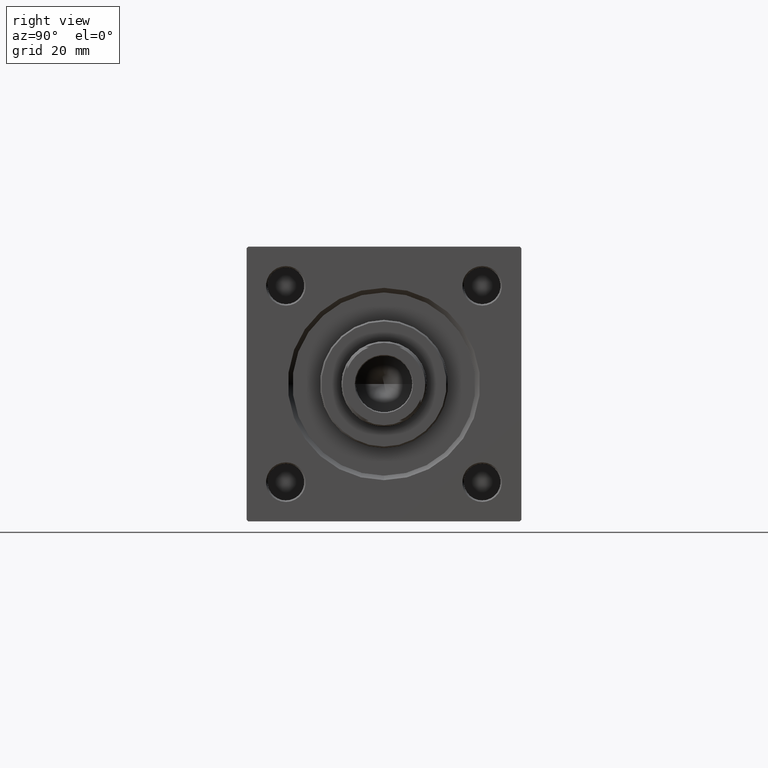
[diagram: clean part render]
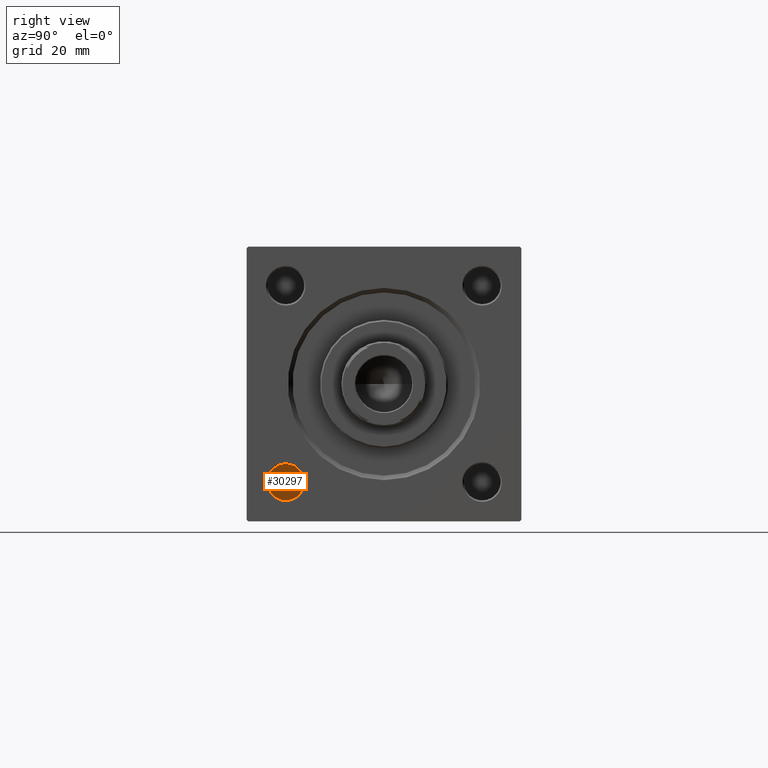
[diagram: same view with one face highlighted and labeled with its STEP entity id]
A machine part, right view. The second image highlights one B-rep face of the part: STEP entity #30297.
In plain terms, the highlighted planar face has unit normal (1, 0, 0).
Its self-contained STEP definition (entity closure, byte-faithful):
#4669 = AXIS2_PLACEMENT_3D ( 'NONE', #42808, #16145, #8022 ) ;
#5245 = AXIS2_PLACEMENT_3D ( 'NONE', #24859, #40562, #32959 ) ;
#6519 = DIRECTION ( 'NONE',  ( 0.000000000000000000, 0.000000000000000000, -1.000000000000000000 ) ) ;
#8022 = DIRECTION ( 'NONE',  ( 0.000000000000000000, 0.000000000000000000, -1.000000000000000000 ) ) ;
#8236 = EDGE_LOOP ( 'NONE', ( #14930, #29935 ) ) ;
#10501 = AXIS2_PLACEMENT_3D ( 'NONE', #42067, #22772, #6519 ) ;
#12092 = FACE_OUTER_BOUND ( 'NONE', #8236, .T. ) ;
#14930 = ORIENTED_EDGE ( 'NONE', *, *, #36461, .T. ) ;
#16145 = DIRECTION ( 'NONE',  ( 1.000000000000000000, 0.000000000000000000, 0.000000000000000000 ) ) ;
#21794 = VERTEX_POINT ( 'NONE', #24820 ) ;
#21951 = CIRCLE ( 'NONE', #10501, 5.999999999999998224 ) ;
#22772 = DIRECTION ( 'NONE',  ( 1.000000000000000000, 0.000000000000000000, 0.000000000000000000 ) ) ;
#23667 = EDGE_CURVE ( 'NONE', #21794, #49617, #46614, .T. ) ;
#24820 = CARTESIAN_POINT ( 'NONE',  ( 130.0000000000000000, -32.15000000000001279, -26.15000000000000924 ) ) ;
#24859 = CARTESIAN_POINT ( 'NONE',  ( 130.0000000000000000, -32.15000000000001279, -32.15000000000000568 ) ) ;
#29935 = ORIENTED_EDGE ( 'NONE', *, *, #23667, .T. ) ;
#30297 = ADVANCED_FACE ( 'NONE', ( #12092 ), #43570, .T. ) ;
#32959 = DIRECTION ( 'NONE',  ( 0.000000000000000000, 0.000000000000000000, -1.000000000000000000 ) ) ;
#36461 = EDGE_CURVE ( 'NONE', #49617, #21794, #21951, .T. ) ;
#40562 = DIRECTION ( 'NONE',  ( 1.000000000000000000, 0.000000000000000000, 0.000000000000000000 ) ) ;
#42067 = CARTESIAN_POINT ( 'NONE',  ( 130.0000000000000000, -32.15000000000001279, -32.15000000000000568 ) ) ;
#42808 = CARTESIAN_POINT ( 'NONE',  ( 130.0000000000000000, -32.15000000000001279, -32.15000000000000568 ) ) ;
#43570 = PLANE ( 'NONE',  #4669 ) ;
#46378 = CARTESIAN_POINT ( 'NONE',  ( 130.0000000000000000, -32.15000000000001279, -38.15000000000000568 ) ) ;
#46614 = CIRCLE ( 'NONE', #5245, 5.999999999999998224 ) ;
#49617 = VERTEX_POINT ( 'NONE', #46378 ) ;